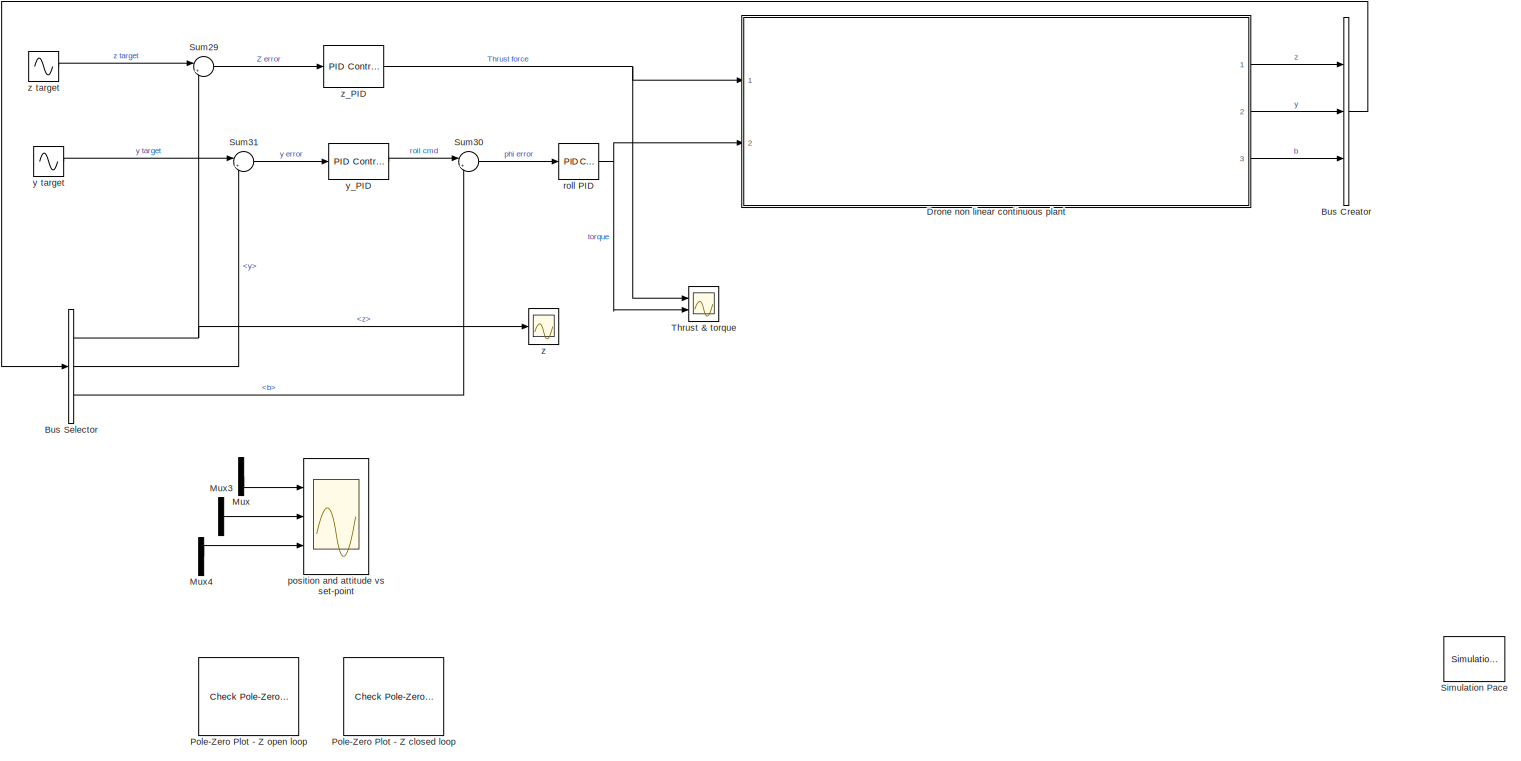
[diagram: root canvas - part 1/4, center side, full height]
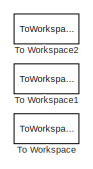
[diagram: root canvas - part 2/4, top right region]
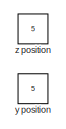
[diagram: root canvas - part 3/4, top left region]
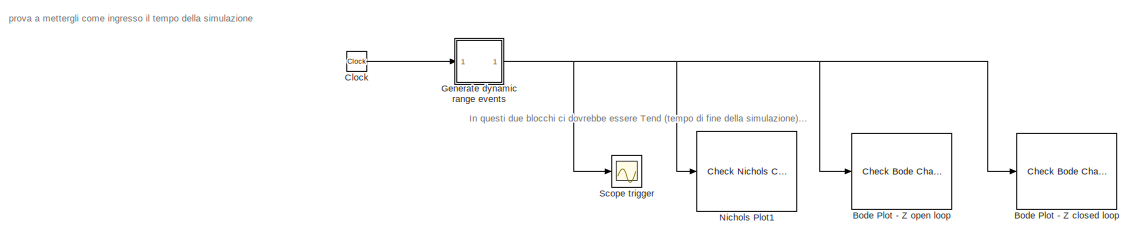
[diagram: root canvas - part 4/4, bottom left region]
MODEL slx_36b68c7e9f57
KIND model
CONFIG AbsTol = auto
CONFIG EnableMultiTasking = off
CONFIG FixedStep = 0.01
CONFIG MaxStep = auto
CONFIG MinStep = auto
CONFIG RelTol = 1e-3
CONFIG SampleTimeConstraint = Unconstrained
CONFIG Solver = FixedStepAuto
CONFIG SolverName = FixedStepAuto
CONFIG StartTime = 0.0
CONFIG StopTime = 100
BLOCK [Reference] Bode Plot - Z closed loop  REF=slctrlblks/Model Verification/Check Bode 
Characteristics
  Commented = on
  InstantiateOnLoad = on
  Ports = [1]
  SourceBlock = slctrlblks/Model Verification/Check Bode \nCharacteristics
  SourceProductBaseCode = SD
  SourceType = Checks_Bode
BLOCK [Reference] Bode Plot - Z open loop  REF=slctrlblks/Model Verification/Check Bode 
Characteristics
  Commented = on
  InstantiateOnLoad = on
  Ports = [1]
  SourceBlock = slctrlblks/Model Verification/Check Bode \nCharacteristics
  SourceProductBaseCode = SD
  SourceType = Checks_Bode
BLOCK [BusCreator] Bus Creator
  DisplayOption = bar
  InheritFromInputs = on
  Inputs = 3
  Ports = [3, 1]
BLOCK [BusSelector] Bus Selector
  OutputSignals = z,y,b
  Ports = [1, 3]
BLOCK [Clock] Clock
  Commented = on
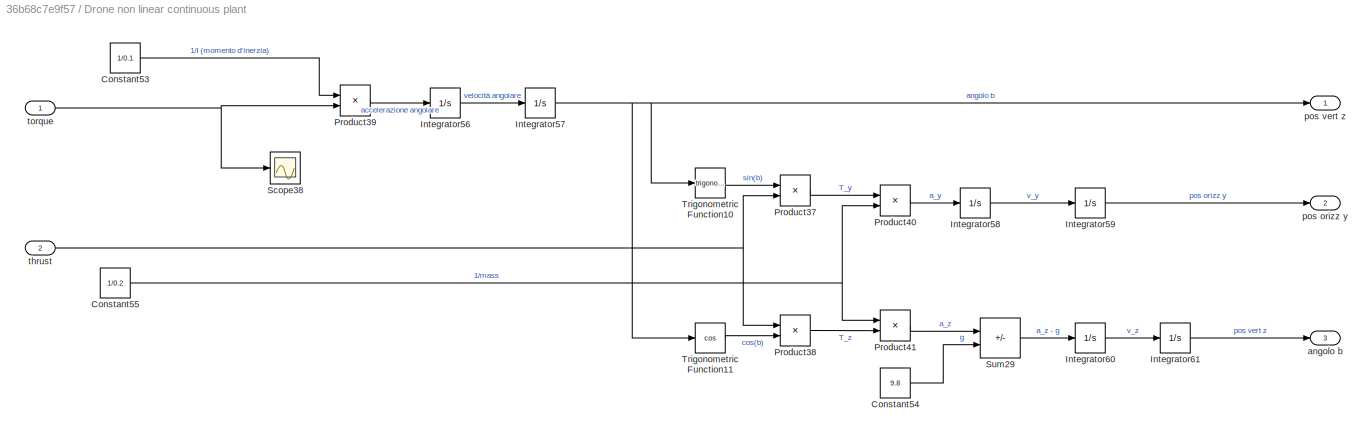
BLOCK [SubSystem] Drone non linear continuous plant
  Ports = [2, 3]
  RequestExecContextInheritance = off
BLOCK [Constant] Drone non linear continuous plant/Constant53
  Value = 1/0.1
BLOCK [Constant] Drone non linear continuous plant/Constant54
  Value = 9.8
BLOCK [Constant] Drone non linear continuous plant/Constant55
  Value = 1/0.2
BLOCK [Integrator] Drone non linear continuous plant/Integrator56
  Ports = [1, 1]
BLOCK [Integrator] Drone non linear continuous plant/Integrator57
  Ports = [1, 1]
BLOCK [Integrator] Drone non linear continuous plant/Integrator58
  Ports = [1, 1]
BLOCK [Integrator] Drone non linear continuous plant/Integrator59
  Ports = [1, 1]
BLOCK [Integrator] Drone non linear continuous plant/Integrator60
  Ports = [1, 1]
BLOCK [Integrator] Drone non linear continuous plant/Integrator61
  Ports = [1, 1]
BLOCK [Product] Drone non linear continuous plant/Product37
  Ports = [2, 1]
BLOCK [Product] Drone non linear continuous plant/Product38
  Ports = [2, 1]
BLOCK [Product] Drone non linear continuous plant/Product39
  Ports = [2, 1]
BLOCK [Product] Drone non linear continuous plant/Product40
  Ports = [2, 1]
BLOCK [Product] Drone non linear continuous plant/Product41
  Ports = [2, 1]
BLOCK [Scope] Drone non linear continuous plant/Scope38
  Floating = off
  NumInputPorts = 1
  Ports = [1]
  ScopeSpecificationString = Simulink.scopes.TimeScopeBlockCfg('CurrentConfiguration', extmgr.ConfigurationSet(extmgr.Configuration('Core','General UI',true),extmgr.Configuration('Core','Source UI',true),extmgr.Configuration('Sources','WiredSimulink',true,'DataLoggingVariableName','ScopeData1'),extmgr.Configuration('Visuals','Time Domain',true,'SerializedDisplays',{struct('MinYLimReal','-0.57025','MaxYLimReal','2.70528','YLab...<+1413ch>
BLOCK [Sum] Drone non linear continuous plant/Sum29
  IconShape = rectangular
  Inputs = +-
  Ports = [2, 1]
BLOCK [Trigonometry] Drone non linear continuous plant/Trigonometric Function10
  Ports = [1, 1]
BLOCK [Trigonometry] Drone non linear continuous plant/Trigonometric Function11
  Operator = cos
  Ports = [1, 1]
BLOCK [Outport] Drone non linear continuous plant/angolo b
  Port = 3
BLOCK [Outport] Drone non linear continuous plant/pos orizz y
  Port = 2
BLOCK [Outport] Drone non linear continuous plant/pos vert z
BLOCK [Inport] Drone non linear continuous plant/thrust
  Port = 2
BLOCK [Inport] Drone non linear continuous plant/torque
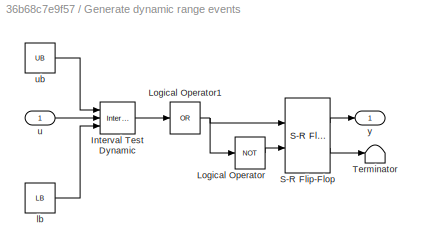
BLOCK [SubSystem] Generate dynamic range events
  Commented = on
  NameLocation = top
  Ports = [1, 1]
  RequestExecContextInheritance = off
BLOCK [Reference] Generate dynamic range events/Interval Test Dynamic  REF=simulink/Logic and Bit
Operations/Interval Test
Dynamic
  Ports = [3, 1]
  SourceBlock = simulink/Logic and Bit\nOperations/Interval Test\nDynamic
  SourceProductBaseCode = SL
  SourceType = Interval Test Dynamic
BLOCK [Logic] Generate dynamic range events/Logical Operator
  AllPortsSameDT = off
  Operator = NOT
  OutDataTypeStr = boolean
  Ports = [1, 1]
BLOCK [Logic] Generate dynamic range events/Logical Operator1
  AllPortsSameDT = off
  Inputs = 1
  Operator = OR
  OutDataTypeStr = boolean
  Ports = [1, 1]
BLOCK [Reference] Generate dynamic range events/S-R Flip-Flop  REF=simulink_extras/Flip Flops/S-R
Flip-Flop
  Ports = [2, 2]
  SourceBlock = simulink_extras/Flip Flops/S-R\nFlip-Flop
  SourceProductBaseCode = SL
  SourceType = SRFlipFlop
BLOCK [Terminator] Generate dynamic range events/Terminator
BLOCK [Constant] Generate dynamic range events/lb
  Value = LB
BLOCK [Inport] Generate dynamic range events/u
BLOCK [Constant] Generate dynamic range events/ub
  Value = UB
BLOCK [Outport] Generate dynamic range events/y
  VectorParamsAs1DForOutWhenUnconnected = off
BLOCK [Mux] Mux
  Commented = on
  DisplayOption = bar
  Inputs = 2
  Ports = [2, 1]
BLOCK [Mux] Mux3
  Commented = on
  DisplayOption = bar
  Inputs = 2
  Ports = [2, 1]
BLOCK [Mux] Mux4
  Commented = on
  DisplayOption = bar
  Inputs = 2
  Ports = [2, 1]
BLOCK [Reference] Nichols Plot1  REF=slctrlblks/Model Verification/Check Nichols
Characteristics
  Commented = on
  InstantiateOnLoad = on
  NameLocation = top
  Ports = [1]
  SourceBlock = slctrlblks/Model Verification/Check Nichols\nCharacteristics
  SourceProductBaseCode = SD
  SourceType = Checks_Nichols
BLOCK [Reference] Pole-Zero Plot - Z closed loop  REF=slctrlblks/Model Verification/Check Pole-Zero
Characteristics
  Commented = on
  InstantiateOnLoad = on
  Ports = []
  SourceBlock = slctrlblks/Model Verification/Check Pole-Zero\nCharacteristics
  SourceProductBaseCode = SD
  SourceType = Checks_PZMap
BLOCK [Reference] Pole-Zero Plot - Z open loop  REF=slctrlblks/Model Verification/Check Pole-Zero
Characteristics
  Commented = on
  InstantiateOnLoad = on
  Ports = []
  SourceBlock = slctrlblks/Model Verification/Check Pole-Zero\nCharacteristics
  SourceProductBaseCode = SD
  SourceType = Checks_PZMap
BLOCK [Scope] Scope trigger
  Commented = on
  Floating = off
  NumInputPorts = 1
  Ports = [1]
  ScopeSpecificationString = Simulink.scopes.TimeScopeBlockCfg('CurrentConfiguration', extmgr.ConfigurationSet(extmgr.Configuration('Core','General UI',true),extmgr.Configuration('Core','Source UI',true),extmgr.Configuration('Sources','WiredSimulink',true,'DataLoggingVariableName','ScopeData2'),extmgr.Configuration('Visuals','Time Domain',true,'SerializedDisplays',{struct('MinYLimReal','-0.125','MaxYLimReal','1.125','YLabelRe...<+1377ch>
BLOCK [Reference] Simulation Pace  REF=aerolibanimutils/Simulation Pace
  AttributesFormatString = %<SimulationPace> sec/sec
  Commented = on
  Ports = []
  SourceBlock = aerolibanimutils/Simulation Pace
  SourceProductBaseCode = AE
  SourceType = Simulation Pace
BLOCK [Sum] Sum29
  Inputs = |+-
  Ports = [2, 1]
BLOCK [Sum] Sum30
  Inputs = |+-
  Ports = [2, 1]
BLOCK [Sum] Sum31
  Inputs = |+-
  Ports = [2, 1]
BLOCK [Scope] Thrust & torque
  Floating = off
  NumInputPorts = 2
  Ports = [2]
  ScopeSpecificationString = Simulink.scopes.TimeScopeBlockCfg('CurrentConfiguration', extmgr.ConfigurationSet(extmgr.Configuration('Core','General UI',true),extmgr.Configuration('Core','Source UI',true),extmgr.Configuration('Sources','WiredSimulink',true,'DataLoggingVariableName','ScopeData13'),extmgr.Configuration('Visuals','Time Domain',true,'SerializedDisplays',{struct('MinYLimReal','-3.83413','MaxYLimReal','33.75935','YL...<+1490ch>
BLOCK [ToWorkspace] To Workspace
  Commented = on
  FixptAsFi = on
  MaxDataPoints = inf
  Ports = [1]
  SampleTime = -1
  VariableName = zout
BLOCK [ToWorkspace] To Workspace1
  Commented = on
  FixptAsFi = on
  MaxDataPoints = inf
  Ports = [1]
  SampleTime = -1
  VariableName = yout
BLOCK [ToWorkspace] To Workspace2
  Commented = on
  FixptAsFi = on
  MaxDataPoints = inf
  Ports = [1]
  SampleTime = -1
  VariableName = rollout
BLOCK [Scope] position and attitude vs set-point
  Commented = on
  Floating = off
  NumInputPorts = 3
  Ports = [3]
  ScopeSpecificationString = Simulink.scopes.TimeScopeBlockCfg('CurrentConfiguration', extmgr.ConfigurationSet(extmgr.Configuration('Core','General UI',true),extmgr.Configuration('Core','Source UI',true),extmgr.Configuration('Sources','WiredSimulink',true,'DataLoggingVariableName','ScopeData1'),extmgr.Configuration('Visuals','Time Domain',true,'SerializedDisplays',{struct('MinYLimReal','-3.98353','MaxYLimReal','3.96306','YLab...<+2815ch>
BLOCK [Reference] roll PID  REF=simulink/Continuous/PID Controller
  Ports = [1, 1]
  SourceBlock = simulink/Continuous/PID Controller
  SourceProductBaseCode = SL
  SourceType = PID 1dof
BLOCK [Constant] y position
  Commented = on
  Value = 5
BLOCK [Sin] y target
  Amplitude = 2
  Frequency = 0.25
  Ports = [0, 1]
  SampleTime = 0
BLOCK [Reference] y_PID  REF=simulink/Continuous/PID Controller
  Ports = [1, 1]
  SourceBlock = simulink/Continuous/PID Controller
  SourceProductBaseCode = SL
  SourceType = PID 1dof
BLOCK [Scope] z
  Floating = off
  NumInputPorts = 1
  Ports = [1]
  ScopeSpecificationString = Simulink.scopes.TimeScopeBlockCfg('CurrentConfiguration', extmgr.ConfigurationSet(extmgr.Configuration('Core','General UI',true),extmgr.Configuration('Core','Source UI',true),extmgr.Configuration('Sources','WiredSimulink',true,'DataLoggingVariableName','ScopeData1'),extmgr.Configuration('Visuals','Time Domain',true,'SerializedDisplays',{struct('MinYLimReal','-3.83413','MaxYLimReal','33.75935','YLa...<+1515ch>
BLOCK [Constant] z position
  Commented = on
  Value = 5
BLOCK [Sin] z target
  Amplitude = 3
  Frequency = 0.5
  Ports = [0, 1]
  SampleTime = 0
BLOCK [Reference] z_PID  REF=simulink/Continuous/PID Controller
  Ports = [1, 1]
  SourceBlock = simulink/Continuous/PID Controller
  SourceProductBaseCode = SL
  SourceType = PID 1dof
ANNOTATION (root): In questi due blocchi ci dovrebbe essere Tend (tempo di fine della simulazione); io ci ho messo direttamente 100
ANNOTATION (root): prova a mettergli come ingresso il tempo della simulazione
LINE Bus Creator:1 -> Bus Selector:1
NET Bus Selector:1 -> Sum29:2, z:1
LINE Bus Selector:2 -> Sum31:2
LINE Bus Selector:3 -> Sum30:2
LINE Clock:1 -> Generate dynamic range events:1
LINE Drone non linear continuous plant/Constant53:1 -> Drone non linear continuous plant/Product39:1
LINE Drone non linear continuous plant/Constant54:1 -> Drone non linear continuous plant/Sum29:2
NET Drone non linear continuous plant/Constant55:1 -> Drone non linear continuous plant/Product40:2, Drone non linear continuous plant/Product41:1
LINE Drone non linear continuous plant/Integrator56:1 -> Drone non linear continuous plant/Integrator57:1
NET Drone non linear continuous plant/Integrator57:1 -> Drone non linear continuous plant/Trigonometric Function10:1, Drone non linear continuous plant/Trigonometric Function11:1, Drone non linear continuous plant/pos vert z:1
LINE Drone non linear continuous plant/Integrator58:1 -> Drone non linear continuous plant/Integrator59:1
LINE Drone non linear continuous plant/Integrator59:1 -> Drone non linear continuous plant/pos orizz y:1
LINE Drone non linear continuous plant/Integrator60:1 -> Drone non linear continuous plant/Integrator61:1
LINE Drone non linear continuous plant/Integrator61:1 -> Drone non linear continuous plant/angolo b:1
LINE Drone non linear continuous plant/Product37:1 -> Drone non linear continuous plant/Product40:1
LINE Drone non linear continuous plant/Product38:1 -> Drone non linear continuous plant/Product41:2
LINE Drone non linear continuous plant/Product39:1 -> Drone non linear continuous plant/Integrator56:1
LINE Drone non linear continuous plant/Product40:1 -> Drone non linear continuous plant/Integrator58:1
LINE Drone non linear continuous plant/Product41:1 -> Drone non linear continuous plant/Sum29:1
LINE Drone non linear continuous plant/Sum29:1 -> Drone non linear continuous plant/Integrator60:1
LINE Drone non linear continuous plant/Trigonometric Function10:1 -> Drone non linear continuous plant/Product37:1
LINE Drone non linear continuous plant/Trigonometric Function11:1 -> Drone non linear continuous plant/Product38:2
NET Drone non linear continuous plant/thrust:1 -> Drone non linear continuous plant/Product37:2, Drone non linear continuous plant/Product38:1
NET Drone non linear continuous plant/torque:1 -> Drone non linear continuous plant/Product39:2, Drone non linear continuous plant/Scope38:1
LINE Drone non linear continuous plant:1 -> Bus Creator:1
LINE Drone non linear continuous plant:2 -> Bus Creator:2
LINE Drone non linear continuous plant:3 -> Bus Creator:3
LINE Generate dynamic range events/Interval Test Dynamic:1 -> Generate dynamic range events/Logical Operator1:1
NET Generate dynamic range events/Logical Operator1:1 -> Generate dynamic range events/Logical Operator:1, Generate dynamic range events/S-R Flip-Flop:1
LINE Generate dynamic range events/Logical Operator:1 -> Generate dynamic range events/S-R Flip-Flop:2
LINE Generate dynamic range events/S-R Flip-Flop:1 -> Generate dynamic range events/y:1
LINE Generate dynamic range events/S-R Flip-Flop:2 -> Generate dynamic range events/Terminator:1
LINE Generate dynamic range events/lb:1 -> Generate dynamic range events/Interval Test Dynamic:3
LINE Generate dynamic range events/u:1 -> Generate dynamic range events/Interval Test Dynamic:2
LINE Generate dynamic range events/ub:1 -> Generate dynamic range events/Interval Test Dynamic:1
NET Generate dynamic range events:1 -> Bode Plot - Z closed loop:1, Bode Plot - Z open loop:1, Nichols Plot1:1, Scope trigger:1
LINE Mux3:1 -> position and attitude vs set-point:2
LINE Mux4:1 -> position and attitude vs set-point:3
LINE Mux:1 -> position and attitude vs set-point:1
LINE Sum29:1 -> z_PID:1
LINE Sum30:1 -> roll PID:1
LINE Sum31:1 -> y_PID:1
NET roll PID:1 -> Drone non linear continuous plant:2, Thrust & torque:2
LINE y target:1 -> Sum31:1
LINE y_PID:1 -> Sum30:1
LINE z target:1 -> Sum29:1
NET z_PID:1 -> Drone non linear continuous plant:1, Thrust & torque:1
note: NET lines group one-source signal fan-out (src -> all destinations, sorted); 1:1 wires keep LINE
